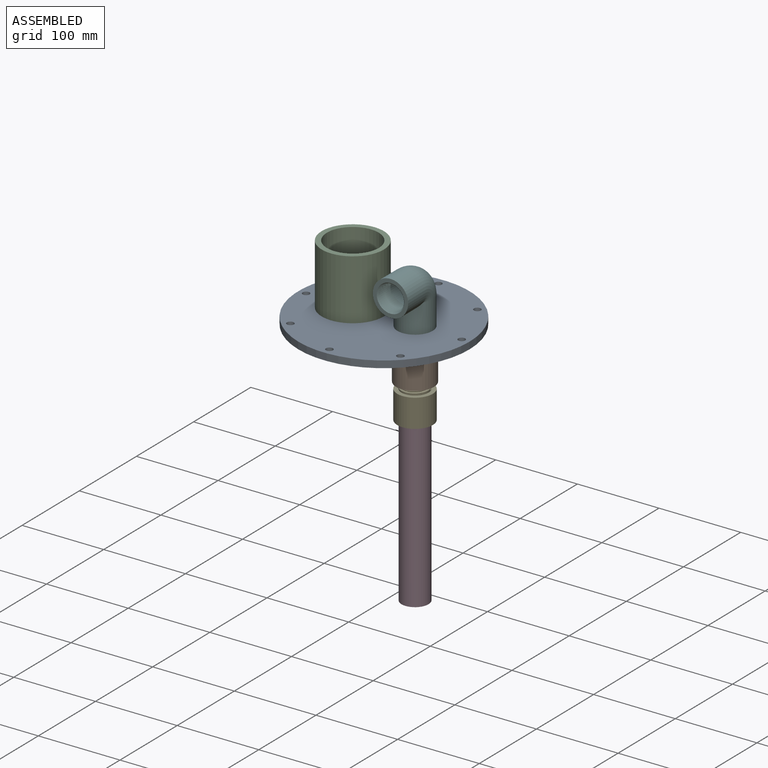
[diagram: assembled view]
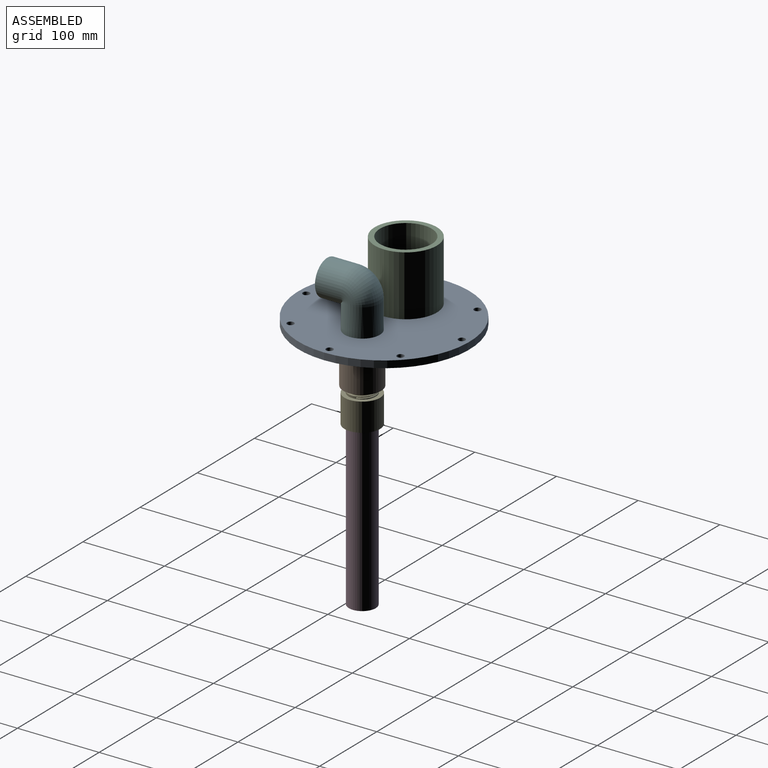
[diagram: assembled view, second angle]
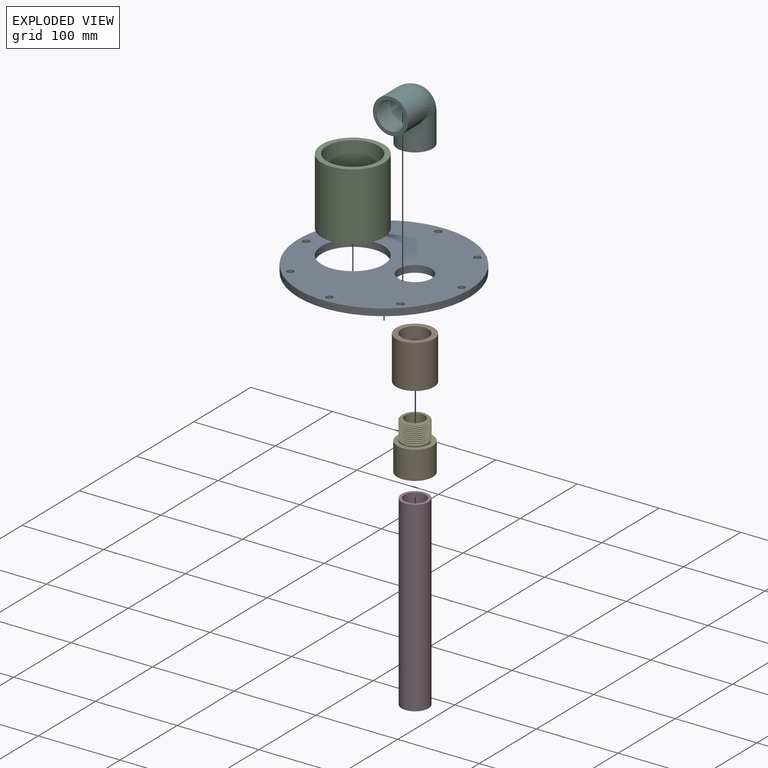
[diagram: exploded view]
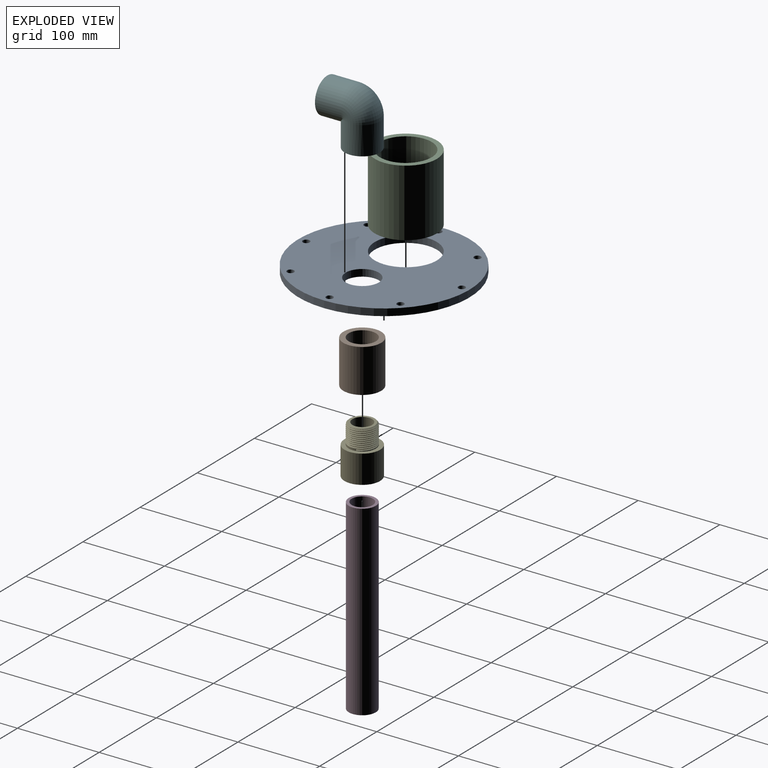
[diagram: exploded view, second angle]
ASSEMBLY  parts=6 mates=5
PART A: 13 faces, bbox 209.6x209.6x8.5 mm
  f0: cylinder r=4.25mm len=8.5mm, axis (0,0,1), area 227mm2, adj f10,f11
  f1: cylinder r=4.25mm len=8.5mm, axis (0,0,1), area 227mm2, adj f10,f11
  f2: cylinder r=4.25mm len=8.5mm, axis (0,0,1), area 227mm2, adj f10,f11
  f3: cylinder r=4.25mm len=8.5mm, axis (0,0,1), area 227mm2, adj f10,f11
  f4: cylinder r=4.25mm len=8.5mm, axis (0,0,1), area 227mm2, adj f10,f11
  f5: cylinder r=4.25mm len=8.5mm, axis (0,0,1), area 227mm2, adj f10,f11
  f6: cylinder r=4.25mm len=8.5mm, axis (0,0,1), area 227mm2, adj f10,f11
  f7: cylinder r=38.1mm len=76.2mm, axis (0,0,-1), area 2034.8mm2, adj f10,f11
  f8: cylinder r=20.32mm len=40.64mm, axis (0,0,-1), area 1085.2mm2, adj f10,f11
  f9: cylinder r=104.77mm len=209.55mm, axis (0,0,-1), area 5595.7mm2, adj f10,f11
  f10: plane 209.55x209.55mm, normal (0,0,1), area 28176.3mm2, adj f0,f1,f2,f3,f4,f5,f6,f7
  f11: plane 209.55x209.55mm, normal (0,0,-1), area 28176.3mm2, adj f0,f1,f2,f3,f4,f5,f6,f7
  f12: cylinder r=4.25mm len=8.5mm, axis (0,0,1), area 227mm2, adj f10,f11
PART B: 14 faces, bbox 53.6x46.4x46.4 mm
  f0: cylinder r=15.42mm len=30.84mm, axis (1,0,0), area 78.2mm2, adj f7,f8,f10,f12,f13
  f1: cylinder r=11.95mm len=23.9mm, axis (-1,0,0), area 150.7mm2, adj f6,f7
  f2: plane 46.36x46.36mm, normal (-1,0,0), area 811.4mm2, adj f4,f5
  f3: plane 46.36x46.36mm, normal (1,0,0), area 785.9mm2, adj f4,f8
  f4: cylinder r=23.18mm len=53.14mm, axis (-1,0,0), area 7738.2mm2, adj f2,f3
  f5: cylinder r=16.7mm len=33.4mm, axis (-1,0,0), area 3019.8mm2, adj f2,f6
  f6: plane 33.4x33.4mm, normal (-1,0,0), area 427.5mm2, adj f1,f5
  f7: plane 30.84x30.84mm, normal (1,0,0), area 298.1mm2, adj f0,f1,f11
  f8: cone r=15.42mm half-angle=45deg, axis (1,0,0), area 145.1mm2, adj f0,f3,f9,f13
  f9: plane 1.28x1.13mm, normal (0,-1,0), area 0.2mm2, adj f8,f12,f13
  f10: plane 2.03x1.14mm, normal (0,0.46,-0.89), area 1.3mm2, adj f0,f11,f12,f13
  f11: cylinder r=15.42mm len=30.46mm, axis (1,0,0), area 43.3mm2, adj f7,f10,f12
  f12: bspline ~35.12x33.4mm, area 1679.5mm2, adj f0,f9,f10,f11,f13
  f13: bspline ~35.12x33.4mm, area 1612.8mm2, adj f0,f8,f9,f10,f12
PART C: 4 faces, bbox 76.2x76.2x82.6 mm
  f0: cylinder r=31.75mm len=82.55mm, axis (0,0,-1), area 16468mm2, adj f2,f3
  f1: cylinder r=38.1mm len=82.55mm, axis (0,0,-1), area 19761.6mm2, adj f2,f3
  f2: plane 76.2x76.2mm, normal (0,0,1), area 1393.4mm2, adj f0,f1
  f3: plane 76.2x76.2mm, normal (0,0,-1), area 1393.4mm2, adj f0,f1
PART D: 4 faces, bbox 33x33x228.6 mm
  f0: cylinder r=13mm len=228.6mm, axis (0,0,1), area 18672.4mm2, adj f2,f3
  f1: cylinder r=16.5mm len=228.6mm, axis (0,0,1), area 23699.5mm2, adj f2,f3
  f2: plane 33x33mm, normal (0,0,-1), area 324.4mm2, adj f0,f1
  f3: plane 33x33mm, normal (0,0,1), area 324.4mm2, adj f0,f1
PART E: 22 faces, bbox 59.9x43.7x43.7 mm
  f0: cylinder r=16.7mm len=33.4mm, axis (-1,0,0), area 8.5mm2, adj f1,f17,f20,f21
  f1: cylinder r=16.7mm len=33.4mm, axis (-1,0,0), area 16mm2, adj f0,f2,f20,f21
  f2: cylinder r=16.7mm len=33.4mm, axis (-1,0,0), area 16mm2, adj f1,f3,f20,f21
  f3: cylinder r=16.7mm len=33.4mm, axis (-1,0,0), area 16mm2, adj f2,f4,f20,f21
  f4: cylinder r=16.7mm len=33.4mm, axis (-1,0,0), area 16mm2, adj f3,f5,f20,f21
  f5: cylinder r=16.7mm len=33.4mm, axis (-1,0,0), area 16mm2, adj f4,f6,f20,f21
  f6: cylinder r=16.7mm len=33.4mm, axis (-1,0,0), area 16mm2, adj f5,f7,f20,f21
  f7: cylinder r=16.7mm len=33.4mm, axis (-1,0,0), area 16mm2, adj f6,f8,f20,f21
  f8: cylinder r=16.7mm len=33.4mm, axis (-1,0,0), area 16mm2, adj f7,f9,f20,f21
  f9: cylinder r=16.7mm len=33.4mm, axis (-1,0,0), area 183.4mm2, adj f8,f16,f19,f20,f21
  f10: plane 30.35x30.35mm, normal (1,0,0), area 264.4mm2, adj f11,f17
  f11: cylinder r=12.09mm len=30.66mm, axis (-1,0,0), area 2329mm2, adj f10,f12
  f12: plane 33.4x33.4mm, normal (-1,0,0), area 417mm2, adj f11,f13
  f13: cylinder r=16.7mm len=33.4mm, axis (-1,0,0), area 3019.8mm2, adj f12,f14
  f14: plane 43.66x43.66mm, normal (-1,0,0), area 621.1mm2, adj f13,f15
  f15: cylinder r=21.83mm len=43.66mm, axis (-1,0,0), area 4738.4mm2, adj f14,f16
  f16: plane 43.66x43.66mm, normal (1,0,0), area 621.1mm2, adj f9,f15
  f17: cone r=16.7mm half-angle=45deg, axis (-1,0,0), area 139.3mm2, adj f0,f10,f18,f20
  f18: plane 1.28x1.13mm, normal (0,-1,0), area 0.2mm2, adj f17,f20,f21
  f19: plane 2.03x1.25mm, normal (0,-0.98,-0.22), area 1.3mm2, adj f9,f20,f21
  f20: bspline ~35.12x33.4mm, area 1658.7mm2, adj f0,f1,f2,f3,f4,f5,f6,f7
  f21: bspline ~35.12x33.4mm, area 1727.8mm2, adj f0,f1,f2,f3,f4,f5,f6,f7
PART F: 25 faces, bbox 68.1x64.9x43.2 mm
  f0: cylinder r=11.95mm len=23.9mm, axis (-1,0,0), area 398.8mm2, adj f6,f8,f18
  f1: plane 43.18x43.18mm, normal (-1,0,0), area 588.2mm2, adj f4,f7
  f2: cylinder r=21.59mm len=43.18mm, axis (0,-1,0), area 3923.1mm2, adj f3,f4,f5
  f3: plane 43.18x43.18mm, normal (0,1,0), area 562.7mm2, adj f2,f20
  f4: cylinder r=21.59mm len=43.18mm, axis (1,0,0), area 4419.2mm2, adj f1,f2,f5
  f5: torus R=11.95mm, axis (0,0,-1), area 2968.3mm2, adj f2,f4
  f6: torus R=11.95mm, axis (0,0,-1), area 849.7mm2, adj f0,f18,f19
  f7: cylinder r=16.7mm len=33.4mm, axis (-1,0,0), area 2998.4mm2, adj f1,f8
  f8: plane 33.4x33.4mm, normal (-1,0,0), area 427.5mm2, adj f0,f7
  f9: cylinder r=15.42mm len=30.84mm, axis (0,1,0), area 13.3mm2, adj f10,f20,f23,f24
  f10: cylinder r=15.42mm len=30.84mm, axis (0,1,0), area 14.8mm2, adj f9,f11,f23,f24
  f11: cylinder r=15.42mm len=30.84mm, axis (0,1,0), area 14.8mm2, adj f10,f12,f23,f24
  f12: cylinder r=15.42mm len=30.84mm, axis (0,1,0), area 14.8mm2, adj f11,f13,f23,f24
  f13: cylinder r=15.42mm len=30.84mm, axis (0,1,0), area 14.8mm2, adj f12,f14,f23,f24
  f14: cylinder r=15.42mm len=30.84mm, axis (0,1,0), area 14.8mm2, adj f13,f15,f23,f24
  f15: cylinder r=15.42mm len=30.84mm, axis (0,1,0), area 14.8mm2, adj f14,f16,f23,f24
  f16: cylinder r=15.42mm len=30.84mm, axis (0,1,0), area 14.8mm2, adj f15,f17,f23,f24
  f17: cylinder r=15.42mm len=30.84mm, axis (0,1,0), area 14.8mm2, adj f16,f18,f23,f24
  f18: cylinder r=15.42mm len=30.84mm, axis (0,1,0), area 1493.1mm2, adj f0,f6,f17,f19,f22,f23,f24
  f19: plane 30.84x25.61mm, normal (0,1,0), area 243.7mm2, adj f6,f18
  f20: cone r=15.42mm half-angle=45deg, axis (0,1,0), area 145.1mm2, adj f3,f9,f21,f23
  f21: plane 1.28x1.13mm, normal (0,0,-1), area 0.2mm2, adj f20,f23,f24
  f22: plane 2.03x1.14mm, normal (-0.89,0,0.46), area 1.3mm2, adj f18,f23,f24
  f23: bspline ~35.12x33.4mm, area 1612.8mm2, adj f9,f10,f11,f12,f13,f14,f15,f16
  f24: bspline ~35.12x33.4mm, area 1680.4mm2, adj f9,f10,f11,f12,f13,f14,f15,f16
PLACE A t=(-62.45,-34.76,87.89)mm
PLACE B rot(axis=(-0.71,0,0.71),180deg) t=(-24.35,-34.76,61.33)mm
PLACE C t=(-62.45,-34.76,87.89)mm
PLACE D t=(-62.45,-34.76,97.19)mm
PLACE E rot(axis=(-0.71,0,-0.71),180deg) t=(-24.35,-34.76,26.76)mm
PLACE F rot(axis=(-0.71,0,-0.71),180deg) t=(-24.35,-34.76,142.9)mm
MATE fastened E.f0 <-> D.f1  axis (0,0,-1) through (-24.35,-34.76,20.99)mm
MATE fastened E.f0 <-> B.f0  axis (0,0,1) through (-24.35,-34.76,26.76)mm
MATE fastened A.f8 <-> F.f4  axis (0,0,1) through (-24.35,-34.76,96.39)mm
MATE fastened C.f1 <-> A.f7  axis (0,0,-1) through (-100.55,-34.76,87.89)mm
MATE fastened B.f0 <-> A.f8  axis (0,0,1) through (-24.35,-34.76,87.89)mm
